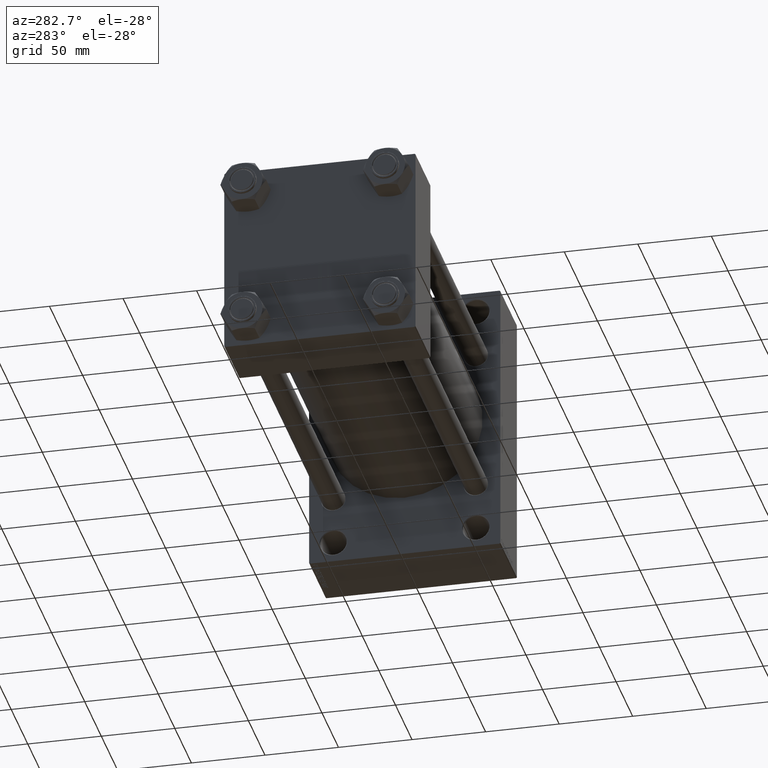
[diagram: clean part render]
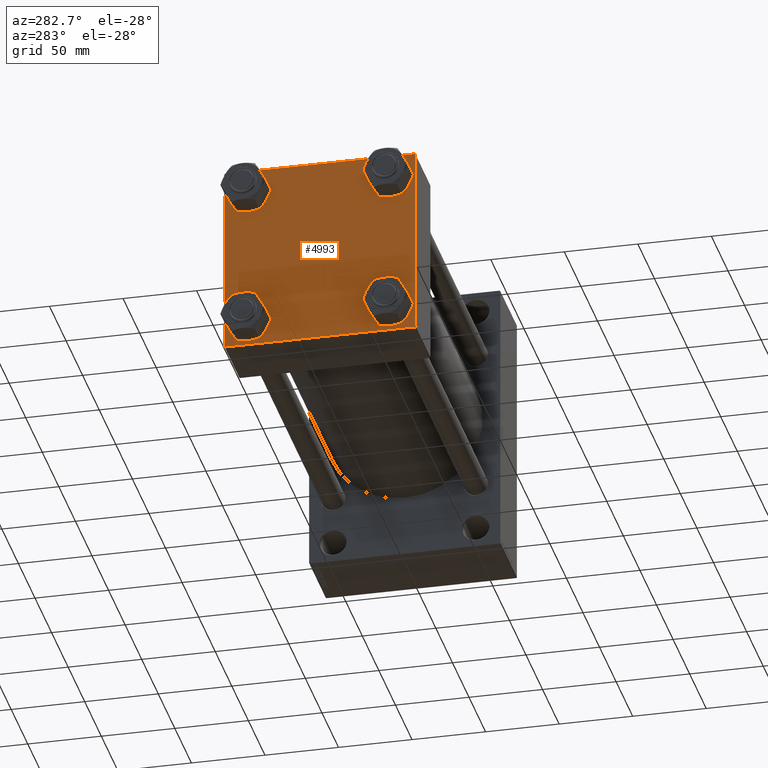
[diagram: same view with one face highlighted and labeled with its STEP entity id]
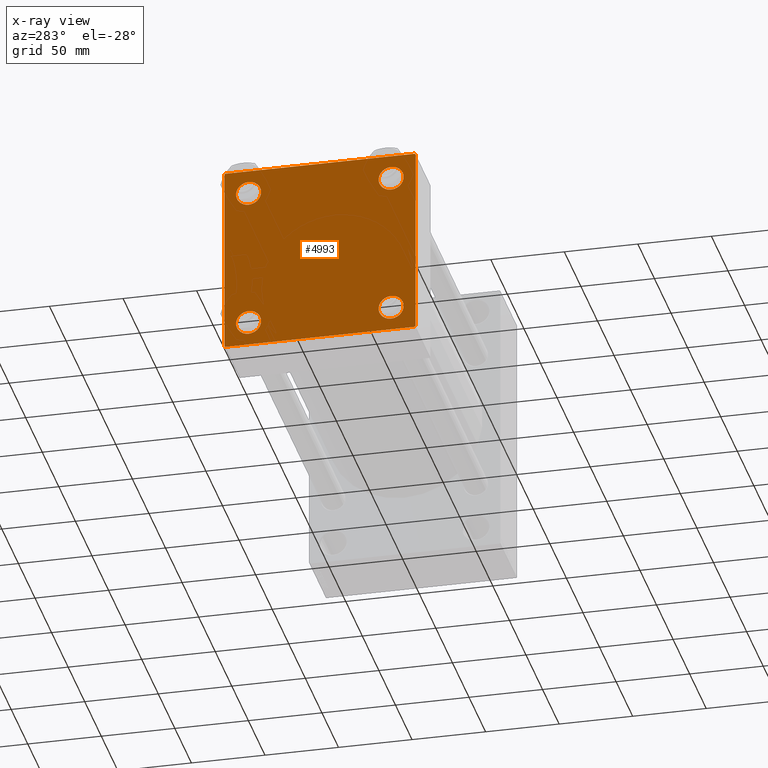
[diagram: x-ray of the same camera — body ghosted, the highlighted face saturated]
A machine part, auxiliary view. The second image highlights one B-rep face of the part: STEP entity #4993.
The next image is the same camera in x-ray: the body ghosted, the highlighted face saturated — about 0% of this face is hidden behind the body in this view.
In plain terms, the highlighted planar face has unit normal (-1, 0, 0).
Its self-contained STEP definition (entity closure, byte-faithful):
#18 = EDGE_CURVE ( 'NONE', #21624, #19164, #9667, .T. ) ;
#354 = LINE ( 'NONE', #34147, #43471 ) ;
#961 = CARTESIAN_POINT ( 'NONE',  ( 0.000000000000000000, 64.74999999999998579, 64.74999999999998579 ) ) ;
#1156 = CIRCLE ( 'NONE', #29150, 8.500000000000007105 ) ;
#1229 = ORIENTED_EDGE ( 'NONE', *, *, #41299, .T. ) ;
#1398 = ORIENTED_EDGE ( 'NONE', *, *, #29375, .T. ) ;
#1619 = CARTESIAN_POINT ( 'NONE',  ( 0.000000000000000000, 65.00000000000000000, 65.00000000000001421 ) ) ;
#1819 = DIRECTION ( 'NONE',  ( 1.000000000000000000, -0.000000000000000000, 0.000000000000000000 ) ) ;
#2024 = EDGE_CURVE ( 'NONE', #21624, #8756, #30399, .T. ) ;
#2043 = EDGE_CURVE ( 'NONE', #45964, #45398, #9729, .T. ) ;
#2140 = CARTESIAN_POINT ( 'NONE',  ( 0.000000000000000000, 64.74999999999997158, -64.74999999999997158 ) ) ;
#2435 = VERTEX_POINT ( 'NONE', #48001 ) ;
#2803 = DIRECTION ( 'NONE',  ( 0.000000000000000000, 0.000000000000000000, 1.000000000000000000 ) ) ;
#3967 = VERTEX_POINT ( 'NONE', #4075 ) ;
#4075 = CARTESIAN_POINT ( 'NONE',  ( 0.000000000000000000, 48.45000000000000995, -39.95000000000000284 ) ) ;
#4278 = VECTOR ( 'NONE', #29763, 1000.000000000000000 ) ;
#4663 = LINE ( 'NONE', #26329, #42242 ) ;
#4993 = ADVANCED_FACE ( 'NONE', ( #32755, #21813, #10632, #36638, #24744 ), #21575, .T. ) ;
#5089 = DIRECTION ( 'NONE',  ( 1.000000000000000000, -0.000000000000000000, 0.000000000000000000 ) ) ;
#5448 = DIRECTION ( 'NONE',  ( 1.000000000000000000, -0.000000000000000000, 0.000000000000000000 ) ) ;
#5792 = CARTESIAN_POINT ( 'NONE',  ( 0.000000000000000000, -48.44999999999999574, -48.45000000000003126 ) ) ;
#6017 = DIRECTION ( 'NONE',  ( 0.000000000000000000, -1.000000000000000000, -1.067522139062650425E-16 ) ) ;
#8565 = CIRCLE ( 'NONE', #45817, 8.500000000000007105 ) ;
#8698 = CARTESIAN_POINT ( 'NONE',  ( 0.000000000000000000, 65.00000000000000000, -64.49999999999995737 ) ) ;
#8756 = VERTEX_POINT ( 'NONE', #31382 ) ;
#9430 = CARTESIAN_POINT ( 'NONE',  ( 0.000000000000000000, 65.00000000000000000, 65.00000000000001421 ) ) ;
#9667 = LINE ( 'NONE', #9430, #32293 ) ;
#9729 = CIRCLE ( 'NONE', #11302, 8.500000000000007105 ) ;
#9953 = DIRECTION ( 'NONE',  ( 0.000000000000000000, 0.000000000000000000, 1.000000000000000000 ) ) ;
#10295 = EDGE_LOOP ( 'NONE', ( #40334, #43838 ) ) ;
#10312 = DIRECTION ( 'NONE',  ( 0.000000000000000000, 0.000000000000000000, 1.000000000000000000 ) ) ;
#10538 = AXIS2_PLACEMENT_3D ( 'NONE', #38792, #1819, #20319 ) ;
#10632 = FACE_BOUND ( 'NONE', #13170, .T. ) ;
#11146 = DIRECTION ( 'NONE',  ( 0.000000000000000000, -1.000000000000000000, -1.067522139062650425E-16 ) ) ;
#11302 = AXIS2_PLACEMENT_3D ( 'NONE', #30627, #5089, #20421 ) ;
#11502 = DIRECTION ( 'NONE',  ( 0.000000000000000000, 0.000000000000000000, -1.000000000000000000 ) ) ;
#11505 = ORIENTED_EDGE ( 'NONE', *, *, #29553, .T. ) ;
#11648 = EDGE_CURVE ( 'NONE', #31579, #19164, #354, .T. ) ;
#12020 = DIRECTION ( 'NONE',  ( -0.000000000000000000, 0.7071067811865672237, 0.7071067811865279218 ) ) ;
#12404 = EDGE_LOOP ( 'NONE', ( #34263, #39396 ) ) ;
#12463 = EDGE_CURVE ( 'NONE', #12818, #14149, #47363, .T. ) ;
#12622 = CARTESIAN_POINT ( 'NONE',  ( 0.000000000000000000, -65.00000000000000000, 64.50000000000000000 ) ) ;
#12818 = VERTEX_POINT ( 'NONE', #36490 ) ;
#13065 = DIRECTION ( 'NONE',  ( 0.000000000000000000, 0.000000000000000000, -1.000000000000000000 ) ) ;
#13073 = CARTESIAN_POINT ( 'NONE',  ( 0.000000000000000000, 48.45000000000000995, -56.95000000000002416 ) ) ;
#13170 = EDGE_LOOP ( 'NONE', ( #31392, #32859 ) ) ;
#13375 = EDGE_CURVE ( 'NONE', #3967, #37805, #38039, .T. ) ;
#13534 = DIRECTION ( 'NONE',  ( 1.000000000000000000, -0.000000000000000000, 0.000000000000000000 ) ) ;
#14149 = VERTEX_POINT ( 'NONE', #31269 ) ;
#14437 = CARTESIAN_POINT ( 'NONE',  ( 0.000000000000000000, 48.45000000000000995, -48.45000000000001705 ) ) ;
#14563 = ORIENTED_EDGE ( 'NONE', *, *, #18, .F. ) ;
#15034 = LINE ( 'NONE', #22083, #44465 ) ;
#16156 = CARTESIAN_POINT ( 'NONE',  ( 0.000000000000000000, -48.44999999999999574, 48.45000000000003126 ) ) ;
#16632 = DIRECTION ( 'NONE',  ( 0.000000000000000000, 0.000000000000000000, 1.000000000000000000 ) ) ;
#16750 = EDGE_CURVE ( 'NONE', #33634, #37006, #8565, .T. ) ;
#17553 = EDGE_CURVE ( 'NONE', #37805, #3967, #37308, .T. ) ;
#17690 = VERTEX_POINT ( 'NONE', #8698 ) ;
#18832 = CARTESIAN_POINT ( 'NONE',  ( 0.000000000000000000, -64.75000000000176215, -64.74999999999816680 ) ) ;
#19164 = VERTEX_POINT ( 'NONE', #36570 ) ;
#19587 = DIRECTION ( 'NONE',  ( 1.000000000000000000, -0.000000000000000000, 0.000000000000000000 ) ) ;
#19718 = ORIENTED_EDGE ( 'NONE', *, *, #11648, .T. ) ;
#20319 = DIRECTION ( 'NONE',  ( 0.000000000000000000, 0.000000000000000000, 1.000000000000000000 ) ) ;
#20421 = DIRECTION ( 'NONE',  ( 0.000000000000000000, 0.000000000000000000, 1.000000000000000000 ) ) ;
#20595 = LINE ( 'NONE', #1619, #45232 ) ;
#21376 = CARTESIAN_POINT ( 'NONE',  ( 0.000000000000000000, 48.45000000000000995, -48.45000000000001705 ) ) ;
#21575 = PLANE ( 'NONE',  #32359 ) ;
#21624 = VERTEX_POINT ( 'NONE', #47015 ) ;
#21813 = FACE_BOUND ( 'NONE', #12404, .T. ) ;
#22083 = CARTESIAN_POINT ( 'NONE',  ( 0.000000000000000000, 65.00000000000000000, -64.99999999999998579 ) ) ;
#23303 = LINE ( 'NONE', #2140, #47832 ) ;
#24192 = DIRECTION ( 'NONE',  ( 0.000000000000000000, 0.000000000000000000, 1.000000000000000000 ) ) ;
#24744 = FACE_OUTER_BOUND ( 'NONE', #45587, .T. ) ;
#24761 = DIRECTION ( 'NONE',  ( 0.000000000000000000, 0.000000000000000000, 1.000000000000000000 ) ) ;
#25745 = ORIENTED_EDGE ( 'NONE', *, *, #12463, .T. ) ;
#26301 = AXIS2_PLACEMENT_3D ( 'NONE', #5792, #39828, #24761 ) ;
#26329 = CARTESIAN_POINT ( 'NONE',  ( 0.000000000000000000, -65.00000000000000000, 65.00000000000000000 ) ) ;
#28969 = CARTESIAN_POINT ( 'NONE',  ( 0.000000000000000000, 48.45000000000000995, 39.95000000000000284 ) ) ;
#29150 = AXIS2_PLACEMENT_3D ( 'NONE', #32481, #13534, #2803 ) ;
#29375 = EDGE_CURVE ( 'NONE', #45594, #34799, #15034, .T. ) ;
#29553 = EDGE_CURVE ( 'NONE', #8756, #17690, #20595, .T. ) ;
#29763 = DIRECTION ( 'NONE',  ( 0.000000000000000000, -0.7071067811865279218, 0.7071067811865671127 ) ) ;
#30399 = LINE ( 'NONE', #961, #35367 ) ;
#30627 = CARTESIAN_POINT ( 'NONE',  ( 0.000000000000000000, -48.44999999999999574, -48.45000000000003126 ) ) ;
#31269 = CARTESIAN_POINT ( 'NONE',  ( 0.000000000000000000, -48.44999999999999574, 56.95000000000003837 ) ) ;
#31382 = CARTESIAN_POINT ( 'NONE',  ( 0.000000000000000000, 65.00000000000000000, 64.49999999999998579 ) ) ;
#31392 = ORIENTED_EDGE ( 'NONE', *, *, #13375, .T. ) ;
#31579 = VERTEX_POINT ( 'NONE', #12622 ) ;
#32293 = VECTOR ( 'NONE', #6017, 1000.000000000000000 ) ;
#32359 = AXIS2_PLACEMENT_3D ( 'NONE', #40048, #39335, #46641 ) ;
#32481 = CARTESIAN_POINT ( 'NONE',  ( 0.000000000000000000, -48.44999999999999574, 48.45000000000003126 ) ) ;
#32584 = EDGE_CURVE ( 'NONE', #31579, #2435, #4663, .T. ) ;
#32700 = CARTESIAN_POINT ( 'NONE',  ( 0.000000000000000000, -48.44999999999999574, -56.95000000000003837 ) ) ;
#32755 = FACE_BOUND ( 'NONE', #36074, .T. ) ;
#32859 = ORIENTED_EDGE ( 'NONE', *, *, #17553, .T. ) ;
#33634 = VERTEX_POINT ( 'NONE', #38709 ) ;
#33836 = ORIENTED_EDGE ( 'NONE', *, *, #2024, .T. ) ;
#34147 = CARTESIAN_POINT ( 'NONE',  ( -0.000000000000000000, -64.74999999999819522, 64.75000000000179057 ) ) ;
#34263 = ORIENTED_EDGE ( 'NONE', *, *, #47679, .T. ) ;
#34799 = VERTEX_POINT ( 'NONE', #46957 ) ;
#35345 = CIRCLE ( 'NONE', #10538, 8.500000000000007105 ) ;
#35367 = VECTOR ( 'NONE', #45468, 1000.000000000000114 ) ;
#35493 = EDGE_CURVE ( 'NONE', #14149, #12818, #1156, .T. ) ;
#36074 = EDGE_LOOP ( 'NONE', ( #43556, #25745 ) ) ;
#36490 = CARTESIAN_POINT ( 'NONE',  ( 0.000000000000000000, -48.44999999999999574, 39.95000000000001705 ) ) ;
#36537 = AXIS2_PLACEMENT_3D ( 'NONE', #21376, #45772, #9953 ) ;
#36570 = CARTESIAN_POINT ( 'NONE',  ( 0.000000000000000000, -64.49999999999997158, 65.00000000000000000 ) ) ;
#36638 = FACE_BOUND ( 'NONE', #10295, .T. ) ;
#37006 = VERTEX_POINT ( 'NONE', #28969 ) ;
#37308 = CIRCLE ( 'NONE', #36537, 8.500000000000007105 ) ;
#37805 = VERTEX_POINT ( 'NONE', #13073 ) ;
#37889 = ORIENTED_EDGE ( 'NONE', *, *, #32584, .F. ) ;
#38039 = CIRCLE ( 'NONE', #45026, 8.500000000000007105 ) ;
#38141 = DIRECTION ( 'NONE',  ( -0.000000000000000000, -0.7071067811865474617, -0.7071067811865474617 ) ) ;
#38539 = CARTESIAN_POINT ( 'NONE',  ( 0.000000000000000000, 48.45000000000000995, 48.45000000000001705 ) ) ;
#38709 = CARTESIAN_POINT ( 'NONE',  ( 0.000000000000000000, 48.45000000000000995, 56.95000000000002416 ) ) ;
#38792 = CARTESIAN_POINT ( 'NONE',  ( 0.000000000000000000, 48.45000000000000995, 48.45000000000001705 ) ) ;
#39335 = DIRECTION ( 'NONE',  ( -1.000000000000000000, 0.000000000000000000, -0.000000000000000000 ) ) ;
#39347 = EDGE_CURVE ( 'NONE', #34799, #2435, #47763, .T. ) ;
#39396 = ORIENTED_EDGE ( 'NONE', *, *, #2043, .T. ) ;
#39527 = CIRCLE ( 'NONE', #26301, 8.500000000000007105 ) ;
#39828 = DIRECTION ( 'NONE',  ( 1.000000000000000000, -0.000000000000000000, 0.000000000000000000 ) ) ;
#40036 = EDGE_CURVE ( 'NONE', #37006, #33634, #35345, .T. ) ;
#40048 = CARTESIAN_POINT ( 'NONE',  ( 0.000000000000000000, 0.000000000000000000, 0.000000000000000000 ) ) ;
#40334 = ORIENTED_EDGE ( 'NONE', *, *, #16750, .T. ) ;
#41299 = EDGE_CURVE ( 'NONE', #17690, #45594, #23303, .T. ) ;
#42242 = VECTOR ( 'NONE', #11502, 1000.000000000000000 ) ;
#43337 = ORIENTED_EDGE ( 'NONE', *, *, #39347, .T. ) ;
#43387 = DIRECTION ( 'NONE',  ( 1.000000000000000000, -0.000000000000000000, 0.000000000000000000 ) ) ;
#43471 = VECTOR ( 'NONE', #12020, 1000.000000000000000 ) ;
#43556 = ORIENTED_EDGE ( 'NONE', *, *, #35493, .T. ) ;
#43778 = CARTESIAN_POINT ( 'NONE',  ( 0.000000000000000000, 64.49999999999997158, -64.99999999999998579 ) ) ;
#43829 = CARTESIAN_POINT ( 'NONE',  ( 0.000000000000000000, -48.44999999999999574, -39.95000000000001705 ) ) ;
#43838 = ORIENTED_EDGE ( 'NONE', *, *, #40036, .T. ) ;
#44262 = AXIS2_PLACEMENT_3D ( 'NONE', #16156, #5448, #16632 ) ;
#44465 = VECTOR ( 'NONE', #11146, 1000.000000000000000 ) ;
#45026 = AXIS2_PLACEMENT_3D ( 'NONE', #14437, #43387, #10312 ) ;
#45232 = VECTOR ( 'NONE', #13065, 1000.000000000000000 ) ;
#45398 = VERTEX_POINT ( 'NONE', #43829 ) ;
#45468 = DIRECTION ( 'NONE',  ( 0.000000000000000000, 0.7071067811865474617, -0.7071067811865474617 ) ) ;
#45587 = EDGE_LOOP ( 'NONE', ( #11505, #1229, #1398, #43337, #37889, #19718, #14563, #33836 ) ) ;
#45594 = VERTEX_POINT ( 'NONE', #43778 ) ;
#45772 = DIRECTION ( 'NONE',  ( 1.000000000000000000, -0.000000000000000000, 0.000000000000000000 ) ) ;
#45817 = AXIS2_PLACEMENT_3D ( 'NONE', #38539, #19587, #24192 ) ;
#45964 = VERTEX_POINT ( 'NONE', #32700 ) ;
#46641 = DIRECTION ( 'NONE',  ( -0.000000000000000000, 0.000000000000000000, 1.000000000000000000 ) ) ;
#46957 = CARTESIAN_POINT ( 'NONE',  ( 0.000000000000000000, -64.49999999999994316, -65.00000000000000000 ) ) ;
#47015 = CARTESIAN_POINT ( 'NONE',  ( 0.000000000000000000, 64.49999999999997158, 65.00000000000001421 ) ) ;
#47363 = CIRCLE ( 'NONE', #44262, 8.500000000000007105 ) ;
#47679 = EDGE_CURVE ( 'NONE', #45398, #45964, #39527, .T. ) ;
#47763 = LINE ( 'NONE', #18832, #4278 ) ;
#47832 = VECTOR ( 'NONE', #38141, 1000.000000000000114 ) ;
#48001 = CARTESIAN_POINT ( 'NONE',  ( 0.000000000000000000, -65.00000000000000000, -64.49999999999991473 ) ) ;